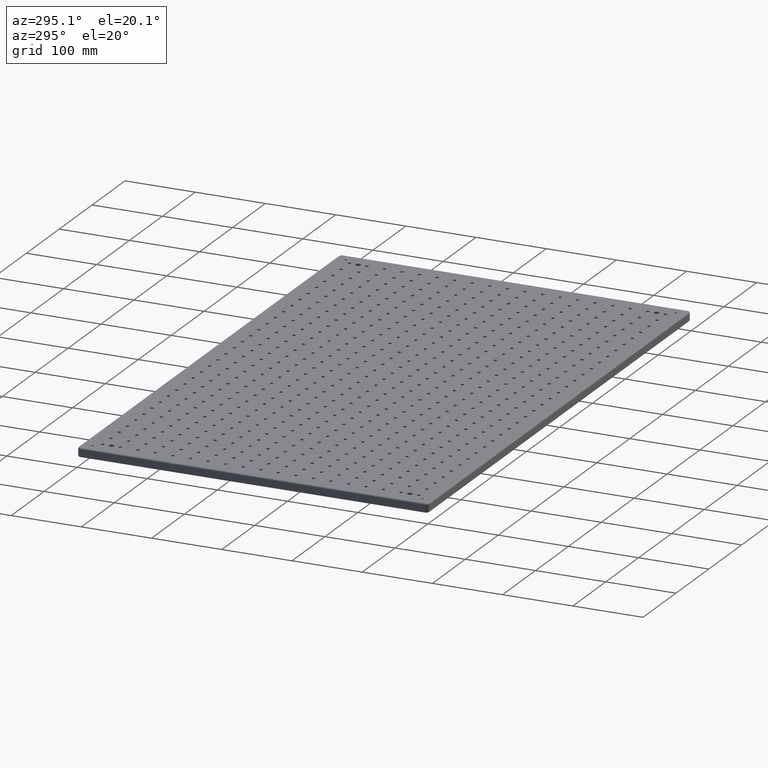
[diagram: clean part render]
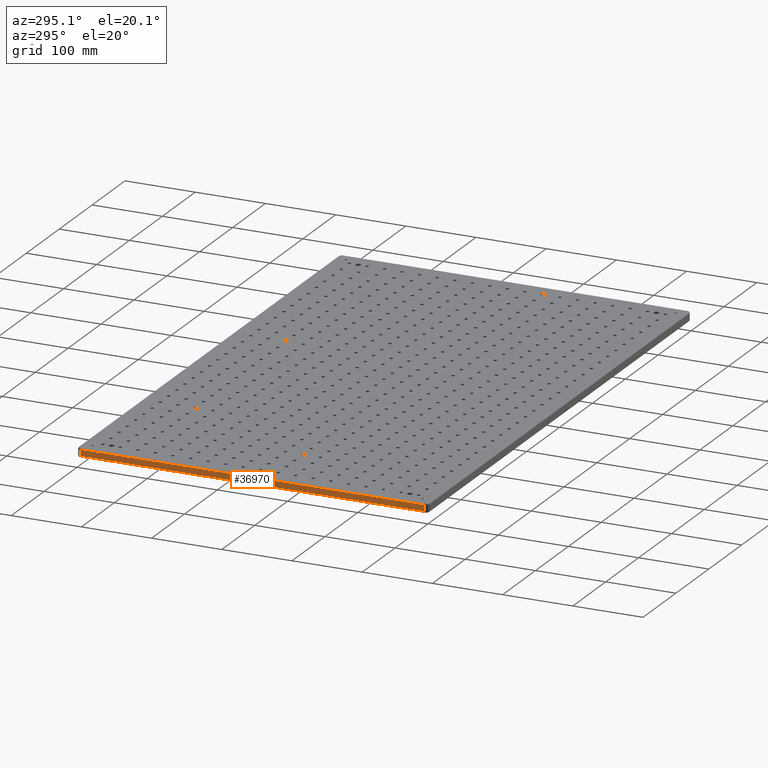
[diagram: same view with one face highlighted and labeled with its STEP entity id]
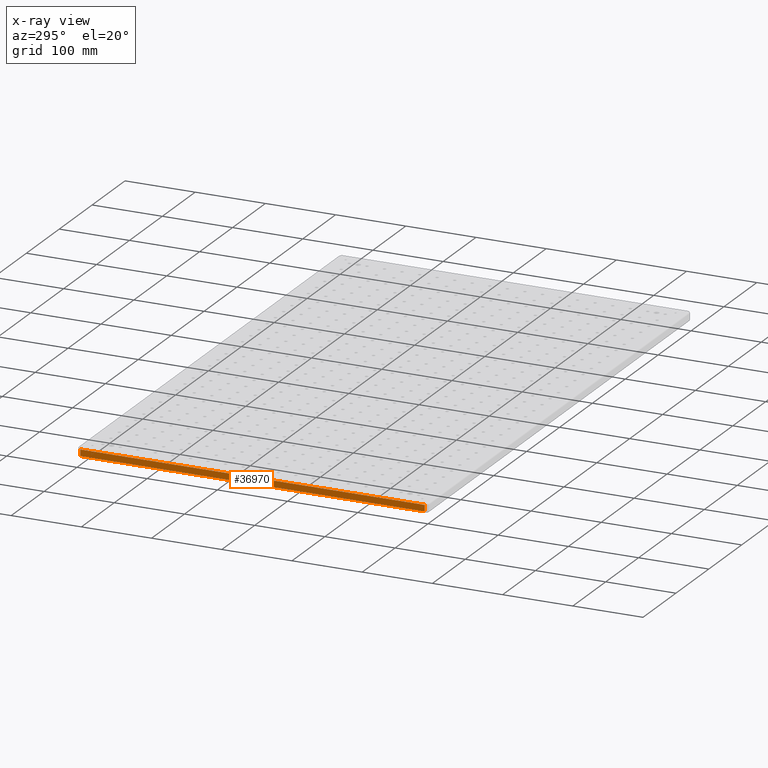
[diagram: x-ray of the same camera — body ghosted, the highlighted face saturated]
A machine part, auxiliary view. The second image highlights one B-rep face of the part: STEP entity #36970.
The next image is the same camera in x-ray: the body ghosted, the highlighted face saturated — about 0% of this face is hidden behind the body in this view.
In plain terms, the highlighted planar face has unit normal (-1, 0, 0).
Its self-contained STEP definition (entity closure, byte-faithful):
#980 = VECTOR ( 'NONE', #35865, 1000.000000000000000 ) ;
#2086 = LINE ( 'NONE', #32354, #980 ) ;
#2458 = VECTOR ( 'NONE', #24883, 1000.000000000000000 ) ;
#2782 = EDGE_CURVE ( 'NONE', #32695, #35933, #2086, .T. ) ;
#5249 = CARTESIAN_POINT ( 'NONE',  ( 0.0000000000000000000, 0.0000000000000000000, -11.00000000000000000 ) ) ;
#5965 = VERTEX_POINT ( 'NONE', #29137 ) ;
#7003 = EDGE_CURVE ( 'NONE', #35933, #5965, #26956, .T. ) ;
#7537 = ORIENTED_EDGE ( 'NONE', *, *, #2782, .T. ) ;
#7799 = ORIENTED_EDGE ( 'NONE', *, *, #15678, .T. ) ;
#9513 = DIRECTION ( 'NONE',  ( 0.0000000000000000000, 0.0000000000000000000, 1.000000000000000000 ) ) ;
#9657 = PLANE ( 'NONE',  #17558 ) ;
#11653 = CARTESIAN_POINT ( 'NONE',  ( 0.0000000000000000000, 4.999999999999998200, -13.00000000000000000 ) ) ;
#13443 = ORIENTED_EDGE ( 'NONE', *, *, #37773, .T. ) ;
#14356 = CARTESIAN_POINT ( 'NONE',  ( 0.0000000000000000000, 495.0000000000000000, -2.000000000000000000 ) ) ;
#14649 = CARTESIAN_POINT ( 'NONE',  ( 0.0000000000000000000, 495.0000000000000000, -2.000000000000000000 ) ) ;
#15678 = EDGE_CURVE ( 'NONE', #29249, #32695, #28614, .T. ) ;
#16665 = DIRECTION ( 'NONE',  ( -1.000000000000000000, 0.0000000000000000000, 0.0000000000000000000 ) ) ;
#17558 = AXIS2_PLACEMENT_3D ( 'NONE', #33860, #16665, #9513 ) ;
#18221 = ORIENTED_EDGE ( 'NONE', *, *, #7003, .T. ) ;
#18229 = DIRECTION ( 'NONE',  ( 0.0000000000000000000, 0.0000000000000000000, 1.000000000000000000 ) ) ;
#18289 = FACE_OUTER_BOUND ( 'NONE', #41107, .T. ) ;
#22010 = VECTOR ( 'NONE', #18229, 1000.000000000000000 ) ;
#24742 = LINE ( 'NONE', #11653, #22010 ) ;
#24750 = VECTOR ( 'NONE', #43515, 1000.000000000000000 ) ;
#24883 = DIRECTION ( 'NONE',  ( -0.0000000000000000000, 1.000000000000000000, -0.0000000000000000000 ) ) ;
#26956 = LINE ( 'NONE', #5249, #24750 ) ;
#28614 = LINE ( 'NONE', #14649, #2458 ) ;
#29137 = CARTESIAN_POINT ( 'NONE',  ( 0.0000000000000000000, 4.999999999999998200, -11.00000000000000000 ) ) ;
#29249 = VERTEX_POINT ( 'NONE', #44859 ) ;
#32354 = CARTESIAN_POINT ( 'NONE',  ( 0.0000000000000000000, 495.0000000000000000, -13.00000000000000000 ) ) ;
#32695 = VERTEX_POINT ( 'NONE', #14356 ) ;
#33860 = CARTESIAN_POINT ( 'NONE',  ( 0.0000000000000000000, 0.0000000000000000000, -13.00000000000000000 ) ) ;
#35865 = DIRECTION ( 'NONE',  ( -0.0000000000000000000, -0.0000000000000000000, -1.000000000000000000 ) ) ;
#35933 = VERTEX_POINT ( 'NONE', #38082 ) ;
#36970 = ADVANCED_FACE ( 'NONE', ( #18289 ), #9657, .T. ) ;
#37773 = EDGE_CURVE ( 'NONE', #5965, #29249, #24742, .T. ) ;
#38082 = CARTESIAN_POINT ( 'NONE',  ( 0.0000000000000000000, 495.0000000000000000, -11.00000000000000000 ) ) ;
#41107 = EDGE_LOOP ( 'NONE', ( #7537, #18221, #13443, #7799 ) ) ;
#43515 = DIRECTION ( 'NONE',  ( 0.0000000000000000000, -1.000000000000000000, 0.0000000000000000000 ) ) ;
#44859 = CARTESIAN_POINT ( 'NONE',  ( 0.0000000000000000000, 4.999999999999998200, -2.000000000000000000 ) ) ;